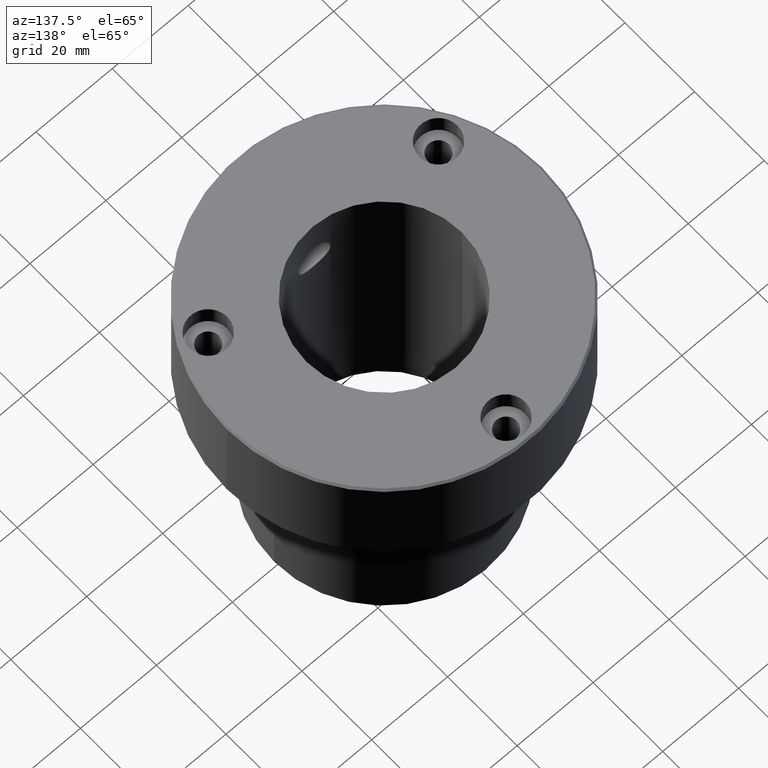
[diagram: clean part render]
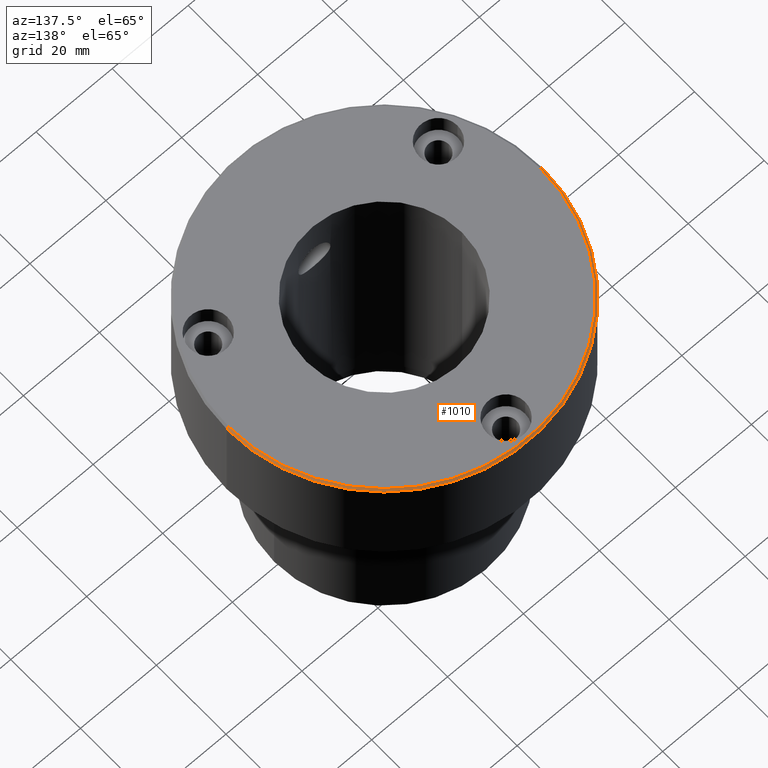
[diagram: same view with one face highlighted and labeled with its STEP entity id]
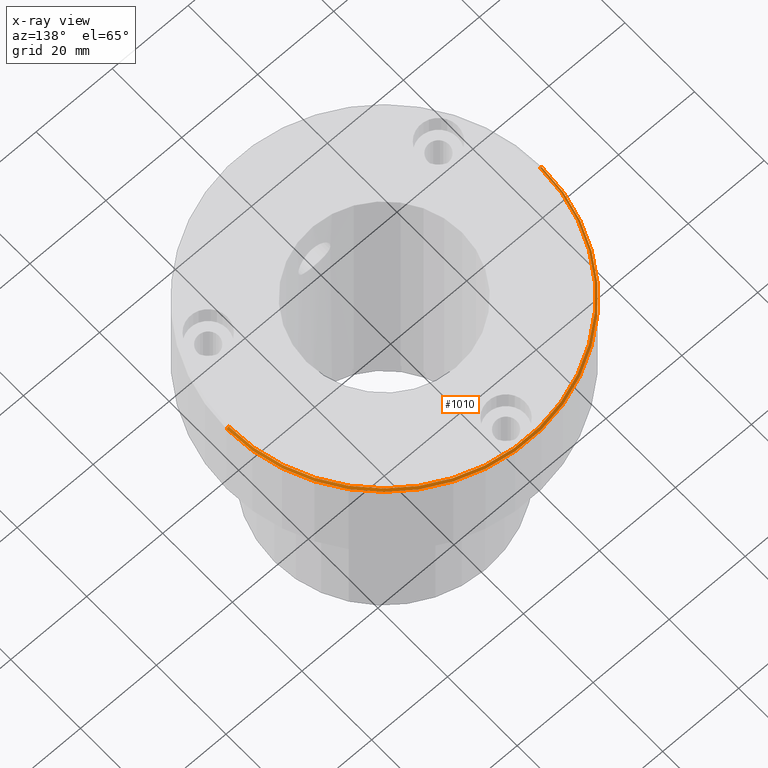
[diagram: x-ray of the same camera — body ghosted, the highlighted face saturated]
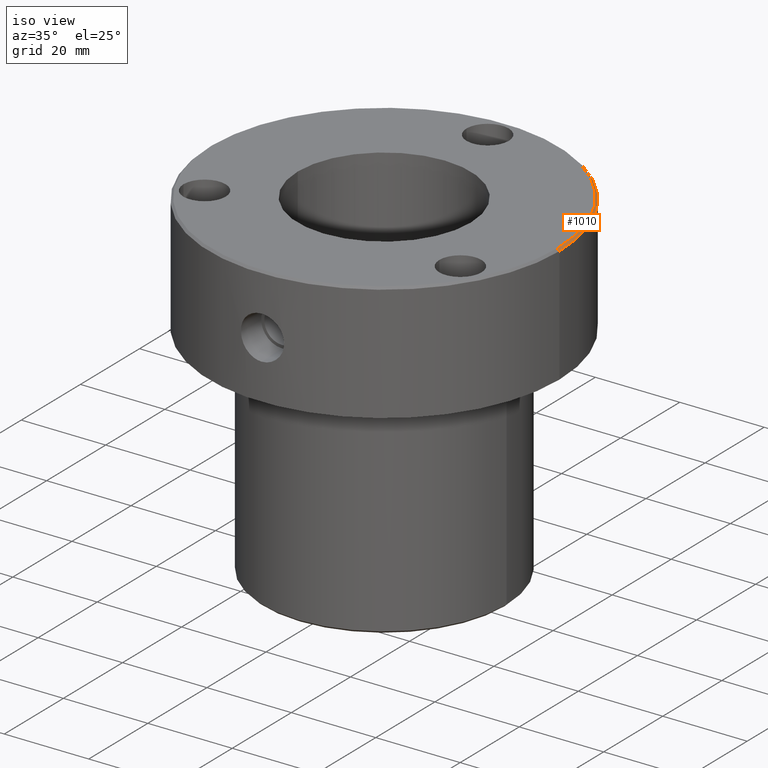
[diagram: same view with one face highlighted and labeled with its STEP entity id]
A machine part, auxiliary view. The second image highlights one B-rep face of the part: STEP entity #1010.
The next image is the same camera in x-ray: the body ghosted, the highlighted face saturated — about 0% of this face is hidden behind the body in this view.
A second angle (iso view) of the same face is appended — the face is thin or edge-on in the first view.
In plain terms, the highlighted conical surface has half-angle 45 deg.
Its self-contained STEP definition (entity closure, byte-faithful):
#2 = CARTESIAN_POINT ( 'NONE',  ( -40.99999999999999289, 0.000000000000000000, 0.000000000000000000 ) ) ;
#6 = VECTOR ( 'NONE', #960, 1000.000000000000000 ) ;
#35 = EDGE_CURVE ( 'NONE', #112, #647, #492, .T. ) ;
#37 = DIRECTION ( 'NONE',  ( -0.000000000000000000, -0.000000000000000000, 1.000000000000000000 ) ) ;
#39 = DIRECTION ( 'NONE',  ( 0.000000000000000000, 0.000000000000000000, -1.000000000000000000 ) ) ;
#99 = EDGE_CURVE ( 'NONE', #1152, #921, #937, .T. ) ;
#112 = VERTEX_POINT ( 'NONE', #344 ) ;
#120 = CIRCLE ( 'NONE', #806, 40.99999999999999289 ) ;
#126 = CARTESIAN_POINT ( 'NONE',  ( 0.000000000000000000, 0.000000000000000000, 0.000000000000000000 ) ) ;
#169 = CARTESIAN_POINT ( 'NONE',  ( -41.50000000000000000, 5.082284216461515748E-15, -0.5000000000000143219 ) ) ;
#176 = CONICAL_SURFACE ( 'NONE', #1118, 40.99999999999999289, 0.7853981633974415066 ) ;
#203 = DIRECTION ( 'NONE',  ( 1.000000000000000000, 0.000000000000000000, 0.000000000000000000 ) ) ;
#344 = CARTESIAN_POINT ( 'NONE',  ( -40.99999999999999289, 0.000000000000000000, 0.000000000000000000 ) ) ;
#387 = CARTESIAN_POINT ( 'NONE',  ( 40.99999999999999289, 5.051668046482831961E-15, 0.000000000000000000 ) ) ;
#423 = DIRECTION ( 'NONE',  ( 1.000000000000000000, 0.000000000000000000, 0.000000000000000000 ) ) ;
#458 = DIRECTION ( 'NONE',  ( 0.7071067811865426878, 8.659560562354874926E-17, -0.7071067811865524577 ) ) ;
#492 = LINE ( 'NONE', #2, #6 ) ;
#509 = ORIENTED_EDGE ( 'NONE', *, *, #1182, .F. ) ;
#518 = CARTESIAN_POINT ( 'NONE',  ( 0.000000000000000000, 0.000000000000000000, -0.5000000000000143219 ) ) ;
#528 = DIRECTION ( 'NONE',  ( 0.000000000000000000, 0.000000000000000000, -1.000000000000000000 ) ) ;
#595 = ORIENTED_EDGE ( 'NONE', *, *, #899, .F. ) ;
#643 = CARTESIAN_POINT ( 'NONE',  ( 0.000000000000000000, 0.000000000000000000, 0.000000000000000000 ) ) ;
#647 = VERTEX_POINT ( 'NONE', #169 ) ;
#656 = CIRCLE ( 'NONE', #961, 41.50000000000000000 ) ;
#779 = CARTESIAN_POINT ( 'NONE',  ( 41.50000000000000000, 0.000000000000000000, -0.5000000000000143219 ) ) ;
#806 = AXIS2_PLACEMENT_3D ( 'NONE', #126, #37, #203 ) ;
#807 = ORIENTED_EDGE ( 'NONE', *, *, #35, .F. ) ;
#815 = CARTESIAN_POINT ( 'NONE',  ( 40.99999999999999289, 5.021051876504148174E-15, 0.000000000000000000 ) ) ;
#899 = EDGE_CURVE ( 'NONE', #647, #921, #656, .T. ) ;
#921 = VERTEX_POINT ( 'NONE', #779 ) ;
#937 = LINE ( 'NONE', #815, #1077 ) ;
#960 = DIRECTION ( 'NONE',  ( -0.7071067811865426878, 0.000000000000000000, -0.7071067811865524577 ) ) ;
#961 = AXIS2_PLACEMENT_3D ( 'NONE', #518, #39, #423 ) ;
#1010 = ADVANCED_FACE ( 'NONE', ( #1194 ), #176, .T. ) ;
#1077 = VECTOR ( 'NONE', #458, 1000.000000000000000 ) ;
#1118 = AXIS2_PLACEMENT_3D ( 'NONE', #643, #528, #1131 ) ;
#1131 = DIRECTION ( 'NONE',  ( -1.000000000000000000, 0.000000000000000000, 0.000000000000000000 ) ) ;
#1152 = VERTEX_POINT ( 'NONE', #387 ) ;
#1182 = EDGE_CURVE ( 'NONE', #1152, #112, #120, .T. ) ;
#1194 = FACE_OUTER_BOUND ( 'NONE', #1223, .T. ) ;
#1223 = EDGE_LOOP ( 'NONE', ( #509, #1232, #595, #807 ) ) ;
#1232 = ORIENTED_EDGE ( 'NONE', *, *, #99, .T. ) ;